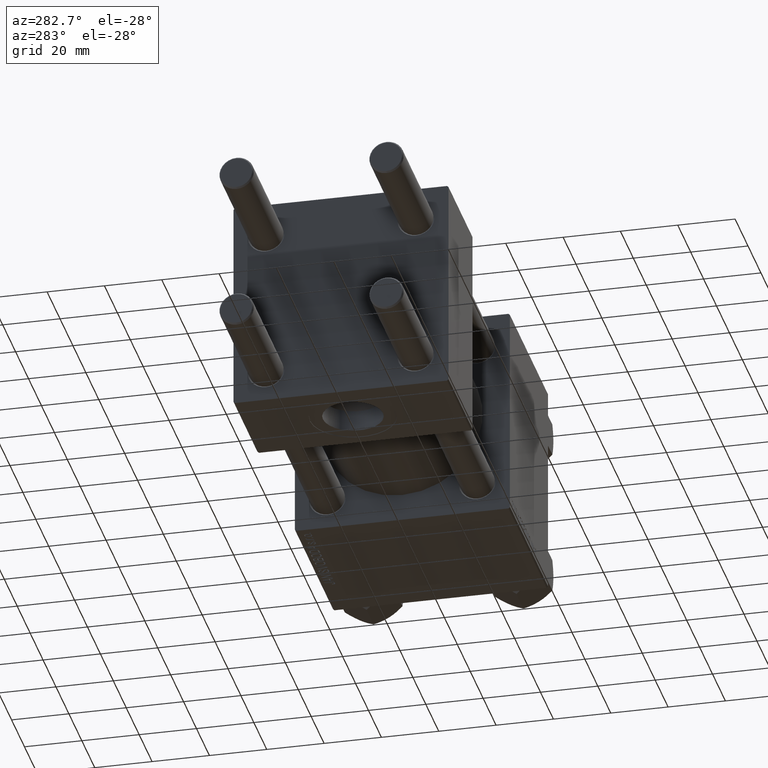
[diagram: clean part render]
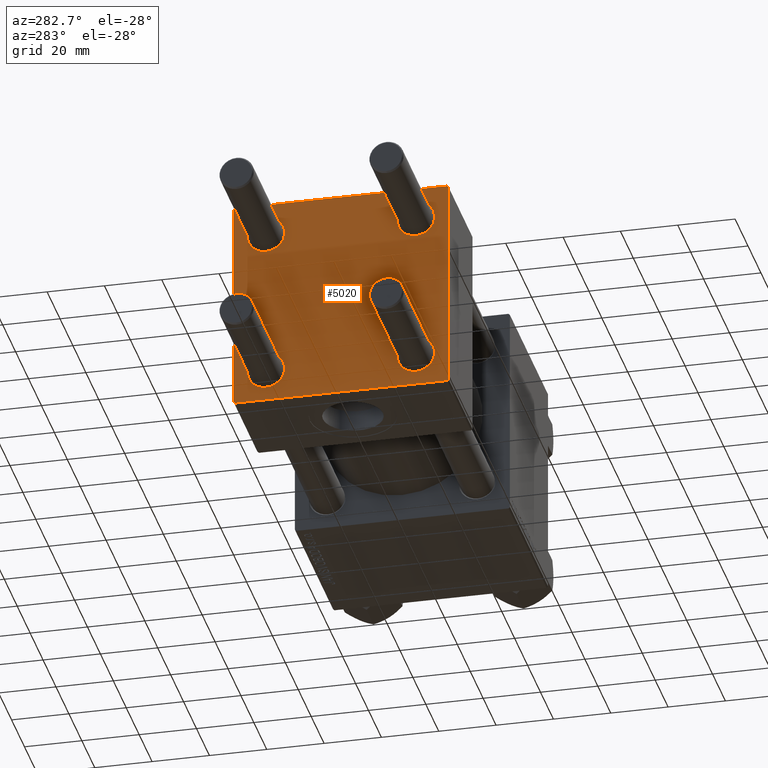
[diagram: same view with one face highlighted and labeled with its STEP entity id]
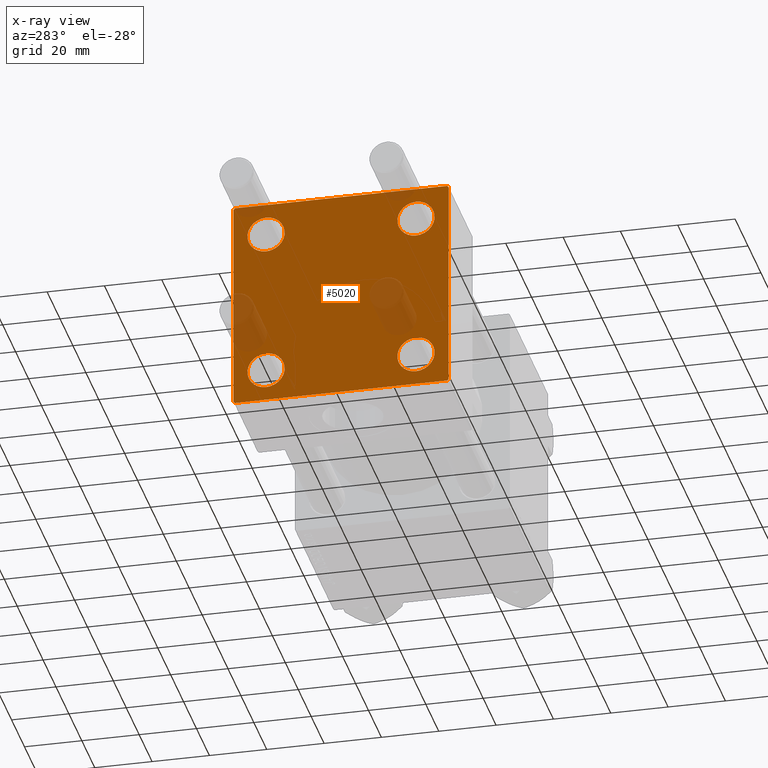
[diagram: x-ray of the same camera — body ghosted, the highlighted face saturated]
A machine part, auxiliary view. The second image highlights one B-rep face of the part: STEP entity #5020.
The next image is the same camera in x-ray: the body ghosted, the highlighted face saturated — about 10% of this face is hidden behind the body in this view.
In plain terms, the highlighted planar face has unit normal (-1, 0, 0).
Its self-contained STEP definition (entity closure, byte-faithful):
#348 = CIRCLE ( 'NONE', #2777, 6.500000000000015987 ) ;
#1071 = CARTESIAN_POINT ( 'NONE',  ( 0.000000000000000000, 37.24999999999998579, -37.24999999999998579 ) ) ;
#1288 = LINE ( 'NONE', #16650, #36016 ) ;
#1518 = ORIENTED_EDGE ( 'NONE', *, *, #24962, .T. ) ;
#2045 = LINE ( 'NONE', #36783, #18285 ) ;
#2777 = AXIS2_PLACEMENT_3D ( 'NONE', #22858, #23849, #16550 ) ;
#2998 = VERTEX_POINT ( 'NONE', #14914 ) ;
#3278 = AXIS2_PLACEMENT_3D ( 'NONE', #29099, #36898, #6204 ) ;
#3771 = VECTOR ( 'NONE', #24007, 1000.000000000000000 ) ;
#5020 = ADVANCED_FACE ( 'NONE', ( #27504, #8383, #5591, #48098, #33515 ), #9637, .T. ) ;
#5586 = EDGE_CURVE ( 'NONE', #8791, #43307, #23624, .T. ) ;
#5591 = FACE_BOUND ( 'NONE', #6087, .T. ) ;
#5653 = EDGE_CURVE ( 'NONE', #48996, #31136, #348, .T. ) ;
#5834 = DIRECTION ( 'NONE',  ( -0.000000000000000000, 0.7071067811865474617, 0.7071067811865474617 ) ) ;
#6087 = EDGE_LOOP ( 'NONE', ( #22007, #24030 ) ) ;
#6204 = DIRECTION ( 'NONE',  ( 0.000000000000000000, 0.000000000000000000, 1.000000000000000000 ) ) ;
#6316 = DIRECTION ( 'NONE',  ( 0.000000000000000000, 0.000000000000000000, 1.000000000000000000 ) ) ;
#7249 = CARTESIAN_POINT ( 'NONE',  ( 0.000000000000000000, -26.14999999999999147, 26.15000000000000924 ) ) ;
#7286 = DIRECTION ( 'NONE',  ( 1.000000000000000000, -0.000000000000000000, 0.000000000000000000 ) ) ;
#7484 = DIRECTION ( 'NONE',  ( 1.000000000000000000, -0.000000000000000000, 0.000000000000000000 ) ) ;
#8160 = LINE ( 'NONE', #1071, #47780 ) ;
#8383 = FACE_BOUND ( 'NONE', #41492, .T. ) ;
#8791 = VERTEX_POINT ( 'NONE', #15378 ) ;
#9385 = VERTEX_POINT ( 'NONE', #33335 ) ;
#9434 = VERTEX_POINT ( 'NONE', #29550 ) ;
#9637 = PLANE ( 'NONE',  #38060 ) ;
#9748 = DIRECTION ( 'NONE',  ( 1.000000000000000000, -0.000000000000000000, 0.000000000000000000 ) ) ;
#9770 = ORIENTED_EDGE ( 'NONE', *, *, #42873, .T. ) ;
#10038 = VERTEX_POINT ( 'NONE', #16012 ) ;
#10042 = EDGE_CURVE ( 'NONE', #43307, #8791, #13378, .T. ) ;
#10184 = EDGE_CURVE ( 'NONE', #29179, #42281, #27019, .T. ) ;
#10346 = VERTEX_POINT ( 'NONE', #24236 ) ;
#10521 = CARTESIAN_POINT ( 'NONE',  ( 0.000000000000000000, -37.24999999999975842, -37.25000000000027001 ) ) ;
#10864 = ORIENTED_EDGE ( 'NONE', *, *, #24984, .T. ) ;
#12362 = DIRECTION ( 'NONE',  ( 0.000000000000000000, -1.000000000000000000, -9.251858538542972814E-17 ) ) ;
#12446 = CARTESIAN_POINT ( 'NONE',  ( 0.000000000000000000, 37.49999999999999289, 37.50000000000000000 ) ) ;
#13080 = ORIENTED_EDGE ( 'NONE', *, *, #17402, .T. ) ;
#13200 = CARTESIAN_POINT ( 'NONE',  ( 0.000000000000000000, -26.14999999999999147, 32.65000000000003411 ) ) ;
#13378 = CIRCLE ( 'NONE', #38255, 6.500000000000015987 ) ;
#14526 = CIRCLE ( 'NONE', #42609, 6.500000000000015987 ) ;
#14808 = LINE ( 'NONE', #18580, #41463 ) ;
#14914 = CARTESIAN_POINT ( 'NONE',  ( 0.000000000000000000, -26.14999999999999147, 19.64999999999999147 ) ) ;
#14917 = AXIS2_PLACEMENT_3D ( 'NONE', #17381, #7484, #6316 ) ;
#15104 = ORIENTED_EDGE ( 'NONE', *, *, #5653, .T. ) ;
#15378 = CARTESIAN_POINT ( 'NONE',  ( 0.000000000000000000, 26.14999999999999858, -19.64999999999998792 ) ) ;
#16012 = CARTESIAN_POINT ( 'NONE',  ( 0.000000000000000000, 37.49999999999999289, -36.99999999999998579 ) ) ;
#16550 = DIRECTION ( 'NONE',  ( 0.000000000000000000, 0.000000000000000000, 1.000000000000000000 ) ) ;
#16650 = CARTESIAN_POINT ( 'NONE',  ( 0.000000000000000000, 37.49999999999999289, 37.50000000000000000 ) ) ;
#17169 = DIRECTION ( 'NONE',  ( -0.000000000000000000, 0.000000000000000000, 1.000000000000000000 ) ) ;
#17381 = CARTESIAN_POINT ( 'NONE',  ( 0.000000000000000000, 26.14999999999999858, 26.15000000000000213 ) ) ;
#17402 = EDGE_CURVE ( 'NONE', #9434, #10346, #49285, .T. ) ;
#17741 = EDGE_LOOP ( 'NONE', ( #48591, #22404 ) ) ;
#18171 = CIRCLE ( 'NONE', #39844, 6.500000000000023093 ) ;
#18285 = VECTOR ( 'NONE', #5834, 1000.000000000000114 ) ;
#18312 = ORIENTED_EDGE ( 'NONE', *, *, #38360, .T. ) ;
#18580 = CARTESIAN_POINT ( 'NONE',  ( 0.000000000000000000, -37.50000000000000711, 37.49999999999999289 ) ) ;
#19325 = DIRECTION ( 'NONE',  ( 0.000000000000000000, 9.251858538542971581E-17, -1.000000000000000000 ) ) ;
#19653 = EDGE_CURVE ( 'NONE', #9434, #31675, #1288, .T. ) ;
#19790 = DIRECTION ( 'NONE',  ( 0.000000000000000000, 0.000000000000000000, 1.000000000000000000 ) ) ;
#21548 = CARTESIAN_POINT ( 'NONE',  ( 0.000000000000000000, 26.14999999999999858, 32.65000000000002700 ) ) ;
#21801 = DIRECTION ( 'NONE',  ( 0.000000000000000000, 0.000000000000000000, 1.000000000000000000 ) ) ;
#21838 = CARTESIAN_POINT ( 'NONE',  ( 0.000000000000000000, 36.99999999999997868, -37.50000000000000000 ) ) ;
#22005 = ORIENTED_EDGE ( 'NONE', *, *, #39688, .F. ) ;
#22007 = ORIENTED_EDGE ( 'NONE', *, *, #5586, .T. ) ;
#22222 = CARTESIAN_POINT ( 'NONE',  ( 0.000000000000000000, -37.00000000000000711, 37.49999999999999289 ) ) ;
#22238 = ORIENTED_EDGE ( 'NONE', *, *, #38750, .T. ) ;
#22404 = ORIENTED_EDGE ( 'NONE', *, *, #36788, .T. ) ;
#22515 = CARTESIAN_POINT ( 'NONE',  ( 0.000000000000000000, 26.14999999999999858, 26.15000000000000213 ) ) ;
#22619 = DIRECTION ( 'NONE',  ( 0.000000000000000000, 0.000000000000000000, 1.000000000000000000 ) ) ;
#22858 = CARTESIAN_POINT ( 'NONE',  ( 0.000000000000000000, -26.14999999999999147, -26.15000000000000924 ) ) ;
#23049 = ORIENTED_EDGE ( 'NONE', *, *, #19653, .F. ) ;
#23624 = CIRCLE ( 'NONE', #46139, 6.500000000000015987 ) ;
#23849 = DIRECTION ( 'NONE',  ( 1.000000000000000000, -0.000000000000000000, 0.000000000000000000 ) ) ;
#24007 = DIRECTION ( 'NONE',  ( 0.000000000000000000, 0.000000000000000000, -1.000000000000000000 ) ) ;
#24030 = ORIENTED_EDGE ( 'NONE', *, *, #10042, .T. ) ;
#24236 = CARTESIAN_POINT ( 'NONE',  ( 0.000000000000000000, 37.49999999999999289, 37.00000000000000000 ) ) ;
#24671 = LINE ( 'NONE', #40004, #30990 ) ;
#24962 = EDGE_CURVE ( 'NONE', #31136, #48996, #14526, .T. ) ;
#24984 = EDGE_CURVE ( 'NONE', #31508, #2998, #46516, .T. ) ;
#26092 = LINE ( 'NONE', #10521, #26877 ) ;
#26454 = ORIENTED_EDGE ( 'NONE', *, *, #40081, .T. ) ;
#26585 = VERTEX_POINT ( 'NONE', #28386 ) ;
#26877 = VECTOR ( 'NONE', #30110, 1000.000000000000000 ) ;
#27019 = CIRCLE ( 'NONE', #36677, 6.500000000000023093 ) ;
#27192 = VERTEX_POINT ( 'NONE', #21838 ) ;
#27504 = FACE_BOUND ( 'NONE', #30843, .T. ) ;
#27935 = VECTOR ( 'NONE', #37229, 1000.000000000000114 ) ;
#28386 = CARTESIAN_POINT ( 'NONE',  ( 0.000000000000000000, -37.50000000000000711, 36.99999999999999289 ) ) ;
#29099 = CARTESIAN_POINT ( 'NONE',  ( 0.000000000000000000, -26.14999999999999147, 26.15000000000000924 ) ) ;
#29179 = VERTEX_POINT ( 'NONE', #21548 ) ;
#29550 = CARTESIAN_POINT ( 'NONE',  ( 0.000000000000000000, 36.99999999999999289, 37.50000000000000000 ) ) ;
#29735 = DIRECTION ( 'NONE',  ( -1.000000000000000000, 0.000000000000000000, -0.000000000000000000 ) ) ;
#29925 = CARTESIAN_POINT ( 'NONE',  ( 0.000000000000000000, 37.24999999999999289, 37.24999999999999289 ) ) ;
#30110 = DIRECTION ( 'NONE',  ( 0.000000000000000000, -0.7071067811865524577, 0.7071067811865426878 ) ) ;
#30843 = EDGE_LOOP ( 'NONE', ( #10864, #22238 ) ) ;
#30990 = VECTOR ( 'NONE', #12362, 1000.000000000000000 ) ;
#31136 = VERTEX_POINT ( 'NONE', #36767 ) ;
#31360 = CARTESIAN_POINT ( 'NONE',  ( 0.000000000000000000, 26.14999999999999858, -26.15000000000000213 ) ) ;
#31507 = DIRECTION ( 'NONE',  ( 0.000000000000000000, -1.000000000000000000, -9.251858538542971581E-17 ) ) ;
#31508 = VERTEX_POINT ( 'NONE', #13200 ) ;
#31675 = VERTEX_POINT ( 'NONE', #22222 ) ;
#31995 = CARTESIAN_POINT ( 'NONE',  ( 0.000000000000000000, -26.14999999999999147, -19.64999999999999503 ) ) ;
#33215 = CARTESIAN_POINT ( 'NONE',  ( 0.000000000000000000, 26.14999999999999858, -32.65000000000001990 ) ) ;
#33335 = CARTESIAN_POINT ( 'NONE',  ( 0.000000000000000000, -37.50000000000000000, -37.00000000000003553 ) ) ;
#33390 = CIRCLE ( 'NONE', #14917, 6.500000000000023093 ) ;
#33515 = FACE_OUTER_BOUND ( 'NONE', #42137, .T. ) ;
#33604 = DIRECTION ( 'NONE',  ( 1.000000000000000000, -0.000000000000000000, 0.000000000000000000 ) ) ;
#34163 = DIRECTION ( 'NONE',  ( 1.000000000000000000, -0.000000000000000000, 0.000000000000000000 ) ) ;
#35152 = EDGE_CURVE ( 'NONE', #49791, #9385, #26092, .T. ) ;
#35801 = DIRECTION ( 'NONE',  ( -0.000000000000000000, -0.7071067811865474617, -0.7071067811865474617 ) ) ;
#36016 = VECTOR ( 'NONE', #31507, 1000.000000000000000 ) ;
#36420 = EDGE_CURVE ( 'NONE', #10038, #27192, #8160, .T. ) ;
#36677 = AXIS2_PLACEMENT_3D ( 'NONE', #22515, #33604, #48688 ) ;
#36767 = CARTESIAN_POINT ( 'NONE',  ( 0.000000000000000000, -26.14999999999999147, -32.65000000000002700 ) ) ;
#36783 = CARTESIAN_POINT ( 'NONE',  ( -0.000000000000000000, -37.25000000000000000, 37.25000000000000000 ) ) ;
#36788 = EDGE_CURVE ( 'NONE', #42281, #29179, #33390, .T. ) ;
#36790 = CARTESIAN_POINT ( 'NONE',  ( 0.000000000000000000, 0.000000000000000000, 0.000000000000000000 ) ) ;
#36898 = DIRECTION ( 'NONE',  ( 1.000000000000000000, -0.000000000000000000, 0.000000000000000000 ) ) ;
#37229 = DIRECTION ( 'NONE',  ( 0.000000000000000000, 0.7071067811865474617, -0.7071067811865474617 ) ) ;
#37462 = ORIENTED_EDGE ( 'NONE', *, *, #35152, .T. ) ;
#37706 = CARTESIAN_POINT ( 'NONE',  ( 0.000000000000000000, 26.14999999999999858, 19.64999999999998437 ) ) ;
#38060 = AXIS2_PLACEMENT_3D ( 'NONE', #36790, #29735, #17169 ) ;
#38201 = ORIENTED_EDGE ( 'NONE', *, *, #36420, .T. ) ;
#38255 = AXIS2_PLACEMENT_3D ( 'NONE', #31360, #43145, #46686 ) ;
#38360 = EDGE_CURVE ( 'NONE', #27192, #49791, #24671, .T. ) ;
#38750 = EDGE_CURVE ( 'NONE', #2998, #31508, #18171, .T. ) ;
#39688 = EDGE_CURVE ( 'NONE', #26585, #9385, #14808, .T. ) ;
#39844 = AXIS2_PLACEMENT_3D ( 'NONE', #7249, #34163, #19790 ) ;
#40004 = CARTESIAN_POINT ( 'NONE',  ( 0.000000000000000000, 37.49999999999999289, -37.50000000000000000 ) ) ;
#40081 = EDGE_CURVE ( 'NONE', #10346, #10038, #46885, .T. ) ;
#41463 = VECTOR ( 'NONE', #19325, 1000.000000000000000 ) ;
#41492 = EDGE_LOOP ( 'NONE', ( #15104, #1518 ) ) ;
#41725 = CARTESIAN_POINT ( 'NONE',  ( 0.000000000000000000, 26.14999999999999858, -26.15000000000000213 ) ) ;
#42137 = EDGE_LOOP ( 'NONE', ( #26454, #38201, #18312, #37462, #22005, #9770, #23049, #13080 ) ) ;
#42281 = VERTEX_POINT ( 'NONE', #37706 ) ;
#42609 = AXIS2_PLACEMENT_3D ( 'NONE', #47949, #9748, #21801 ) ;
#42873 = EDGE_CURVE ( 'NONE', #26585, #31675, #2045, .T. ) ;
#43145 = DIRECTION ( 'NONE',  ( 1.000000000000000000, -0.000000000000000000, 0.000000000000000000 ) ) ;
#43307 = VERTEX_POINT ( 'NONE', #33215 ) ;
#46139 = AXIS2_PLACEMENT_3D ( 'NONE', #41725, #7286, #22619 ) ;
#46516 = CIRCLE ( 'NONE', #3278, 6.500000000000023093 ) ;
#46686 = DIRECTION ( 'NONE',  ( 0.000000000000000000, 0.000000000000000000, 1.000000000000000000 ) ) ;
#46885 = LINE ( 'NONE', #12446, #3771 ) ;
#46897 = CARTESIAN_POINT ( 'NONE',  ( 0.000000000000000000, -37.00000000000002132, -37.50000000000000711 ) ) ;
#47780 = VECTOR ( 'NONE', #35801, 1000.000000000000114 ) ;
#47949 = CARTESIAN_POINT ( 'NONE',  ( 0.000000000000000000, -26.14999999999999147, -26.15000000000000924 ) ) ;
#48098 = FACE_BOUND ( 'NONE', #17741, .T. ) ;
#48591 = ORIENTED_EDGE ( 'NONE', *, *, #10184, .T. ) ;
#48688 = DIRECTION ( 'NONE',  ( 0.000000000000000000, 0.000000000000000000, 1.000000000000000000 ) ) ;
#48996 = VERTEX_POINT ( 'NONE', #31995 ) ;
#49285 = LINE ( 'NONE', #29925, #27935 ) ;
#49791 = VERTEX_POINT ( 'NONE', #46897 ) ;